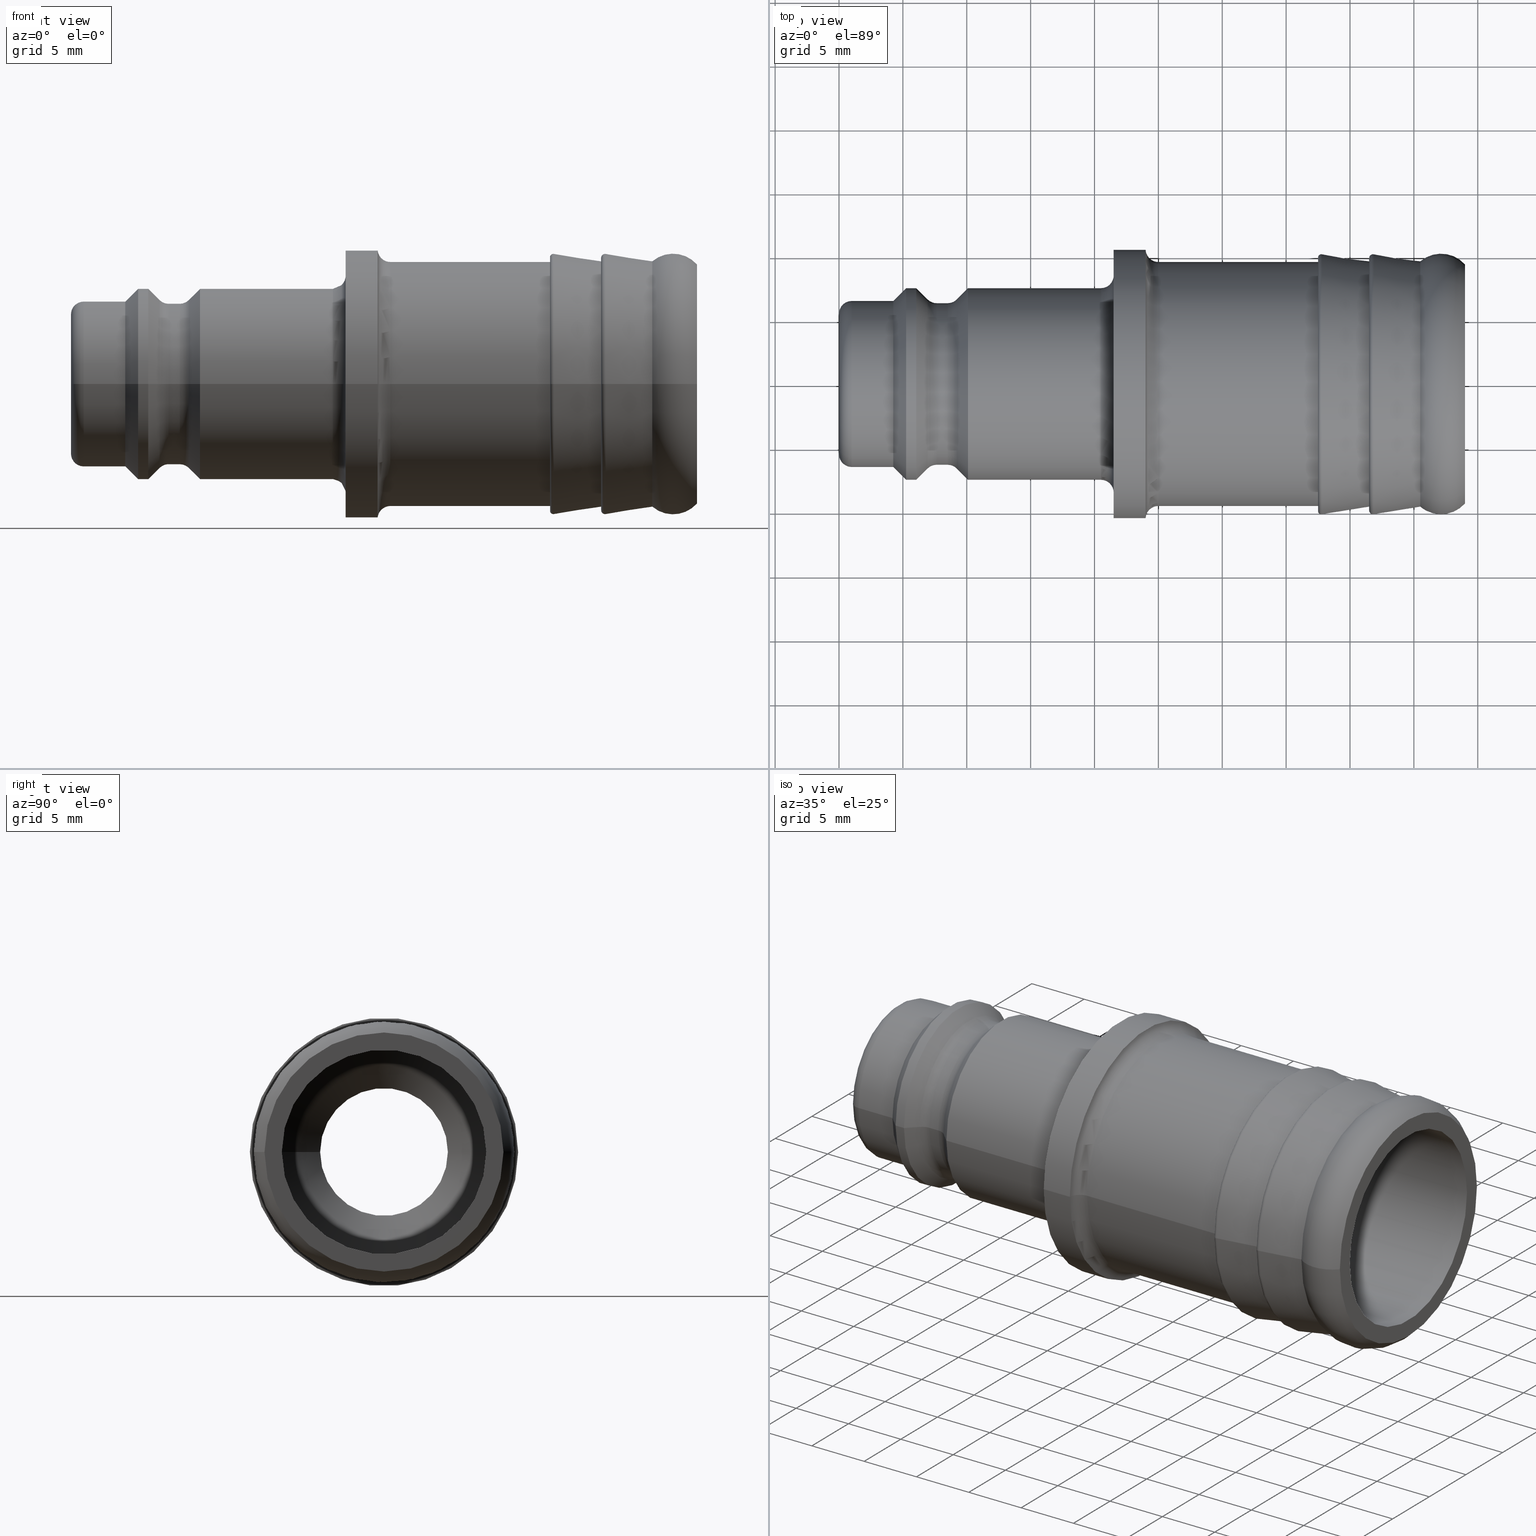
[diagram: canonical four-view strip — front | top / right | iso, engineering-drawing reading convention]
A machine part, canonical four-view strip (front | top / right | iso — engineering-drawing reading convention). The complete STEP part file that produces these views, byte-faithful:
ISO-10303-21;
HEADER;
/****************************************************************
 * Generated by software with PDElib inside                    *
 * PDElib Version v51a, created Wed 11/30/2011                  *
 * ITI Transcendata (http://www.transcendata.com/)              *
 ****************************************************************/
FILE_DESCRIPTION((''),'2;1');
FILE_NAME('J:\\3D Zeichnungen_step\\Serie 27\\27sftf19rxx.stp','2014-01-21T15:47:39',('IA176480'),(''),'Autodesk Inventor 2013','Autodesk Inventor 2013','');
FILE_SCHEMA(('AUTOMOTIVE_DESIGN { 1 0 10303 214 1 1 1 1 }'));
ENDSEC;
DATA;
#5=APPLICATION_CONTEXT('automotive design');
#6=APPLICATION_PROTOCOL_DEFINITION('International Standard','automotive_design',2001,#5);
#7=PRODUCT_CONTEXT('',#5,'mechanical');
#8=PRODUCT('D107898','D107898',$,(#7));
#9=PRODUCT_RELATED_PRODUCT_CATEGORY('part',$,(#8));
#10=PRODUCT_DEFINITION_FORMATION('',$,#8);
#11=PRODUCT_DEFINITION_CONTEXT('part definition',#5,'design');
#12=PRODUCT_DEFINITION('',$,#10,#11);
#18=(NAMED_UNIT(*)PLANE_ANGLE_UNIT()SI_UNIT($,.RADIAN.));
#19=DIMENSIONAL_EXPONENTS(0.0,0.0,0.0,0.0,0.0,0.0,0.0);
#20=PLANE_ANGLE_MEASURE_WITH_UNIT(PLANE_ANGLE_MEASURE(0.0174532925),#18);
#24=(CONVERSION_BASED_UNIT('DEGREE',#20)NAMED_UNIT(#19)PLANE_ANGLE_UNIT());
#28=(NAMED_UNIT(*)SI_UNIT($,.STERADIAN.)SOLID_ANGLE_UNIT());
#32=(LENGTH_UNIT()NAMED_UNIT(*)SI_UNIT(.MILLI.,.METRE.));
#34=UNCERTAINTY_MEASURE_WITH_UNIT(LENGTH_MEASURE(0.01),#32,'DISTANCE_ACCURACY_VALUE','');
#36=(GEOMETRIC_REPRESENTATION_CONTEXT(3)GLOBAL_UNCERTAINTY_ASSIGNED_CONTEXT((#34))GLOBAL_UNIT_ASSIGNED_CONTEXT((#24,#28,#32))REPRESENTATION_CONTEXT('None','None'));
#37=AXIS2_PLACEMENT_3D('',#38,#39,#40);
#38=CARTESIAN_POINT('',(0.0,0.0,0.0));
#39=DIRECTION('',(0.0,0.0,1.0));
#40=DIRECTION('',(1.0,0.0,0.0));
#41=SHAPE_REPRESENTATION('',(#37),#36);
#42=PRODUCT_DEFINITION_SHAPE('','',#12);
#43=SHAPE_DEFINITION_REPRESENTATION(#42,#41);
#49=(NAMED_UNIT(*)PLANE_ANGLE_UNIT()SI_UNIT($,.RADIAN.));
#50=DIMENSIONAL_EXPONENTS(0.0,0.0,0.0,0.0,0.0,0.0,0.0);
#51=PLANE_ANGLE_MEASURE_WITH_UNIT(PLANE_ANGLE_MEASURE(0.0174532925),#49);
#55=(CONVERSION_BASED_UNIT('DEGREE',#51)NAMED_UNIT(#50)PLANE_ANGLE_UNIT());
#59=(NAMED_UNIT(*)SI_UNIT($,.STERADIAN.)SOLID_ANGLE_UNIT());
#63=(LENGTH_UNIT()NAMED_UNIT(*)SI_UNIT(.MILLI.,.METRE.));
#65=UNCERTAINTY_MEASURE_WITH_UNIT(LENGTH_MEASURE(0.000001),#63,'DISTANCE_ACCURACY_VALUE','');
#67=(GEOMETRIC_REPRESENTATION_CONTEXT(3)GLOBAL_UNCERTAINTY_ASSIGNED_CONTEXT((#65))GLOBAL_UNIT_ASSIGNED_CONTEXT((#55,#59,#63))REPRESENTATION_CONTEXT('','3D'));
#68=CARTESIAN_POINT('',(24.99874921777192,0.0,0.0));
#69=DIRECTION('',(-1.0,0.0,0.0));
#70=DIRECTION('',(0.0,-1.0,0.0));
#71=AXIS2_PLACEMENT_3D('',#68,#69,#70);
#72=TOROIDAL_SURFACE('',#71,10.550000000000001,1.0);
#73=CARTESIAN_POINT('',(24.99874921777192,9.550000000000003,-1.108567E-017));
#74=VERTEX_POINT('',#73);
#75=CARTESIAN_POINT('',(24.99874921777192,0.0,0.0));
#76=DIRECTION('',(-1.0,0.0,0.0));
#77=DIRECTION('',(0.0,-1.0,0.0));
#78=AXIS2_PLACEMENT_3D('',#75,#76,#77);
#79=CIRCLE('',#78,9.550000000000003);
#80=EDGE_CURVE('',#74,#74,#79,.T.);
#81=ORIENTED_EDGE('',*,*,#80,.T.);
#82=EDGE_LOOP('',(#81));
#83=FACE_OUTER_BOUND('',#82,.T.);
#84=CARTESIAN_POINT('',(24.000000000000014,-10.5,0.0));
#85=VERTEX_POINT('',#84);
#86=CARTESIAN_POINT('',(24.000000000000014,0.0,0.0));
#87=DIRECTION('',(-1.0,0.0,0.0));
#88=DIRECTION('',(0.0,-1.0,0.0));
#89=AXIS2_PLACEMENT_3D('',#86,#87,#88);
#90=CIRCLE('',#89,10.5);
#91=EDGE_CURVE('',#85,#85,#90,.T.);
#92=ORIENTED_EDGE('',*,*,#91,.F.);
#93=EDGE_LOOP('',(#92));
#94=FACE_BOUND('',#93,.T.);
#95=ADVANCED_FACE('',(#83,#94),#72,.F.);
#96=CARTESIAN_POINT('',(30.75,0.0,0.0));
#97=DIRECTION('',(-1.0,0.0,0.0));
#98=DIRECTION('',(0.0,-1.0,0.0));
#99=AXIS2_PLACEMENT_3D('',#96,#97,#98);
#100=CYLINDRICAL_SURFACE('',#99,9.550000000000001);
#101=CARTESIAN_POINT('',(37.499999999999993,-9.549999999999997,0.0));
#102=VERTEX_POINT('',#101);
#103=CARTESIAN_POINT('',(37.499999999999993,0.0,0.0));
#104=DIRECTION('',(-1.0,0.0,0.0));
#105=DIRECTION('',(0.0,-1.0,0.0));
#106=AXIS2_PLACEMENT_3D('',#103,#104,#105);
#107=CIRCLE('',#106,9.549999999999997);
#108=EDGE_CURVE('',#102,#102,#107,.T.);
#109=ORIENTED_EDGE('',*,*,#108,.T.);
#110=EDGE_LOOP('',(#109));
#111=FACE_OUTER_BOUND('',#110,.T.);
#112=ORIENTED_EDGE('',*,*,#80,.F.);
#113=EDGE_LOOP('',(#112));
#114=FACE_BOUND('',#113,.T.);
#115=ADVANCED_FACE('',(#111,#114),#100,.T.);
#116=CARTESIAN_POINT('',(20.499999999999993,0.0,0.0));
#117=DIRECTION('',(-1.0,0.0,0.0));
#118=DIRECTION('',(0.0,0.0,1.0));
#119=AXIS2_PLACEMENT_3D('',#116,#117,#118);
#120=TOROIDAL_SURFACE('',#119,8.499999999999998,1.0);
#121=CARTESIAN_POINT('',(21.499999999999993,-8.499999999999998,0.0));
#122=VERTEX_POINT('',#121);
#123=CARTESIAN_POINT('',(21.499999999999993,0.0,0.0));
#124=DIRECTION('',(-1.0,0.0,0.0));
#125=DIRECTION('',(0.0,1.0,0.0));
#126=AXIS2_PLACEMENT_3D('',#123,#124,#125);
#127=CIRCLE('',#126,8.499999999999998);
#128=EDGE_CURVE('',#122,#122,#127,.T.);
#129=ORIENTED_EDGE('',*,*,#128,.T.);
#130=EDGE_LOOP('',(#129));
#131=FACE_OUTER_BOUND('',#130,.T.);
#132=CARTESIAN_POINT('',(20.499999999999993,-7.499999999999999,-1.836970E-015));
#133=VERTEX_POINT('',#132);
#134=CARTESIAN_POINT('',(20.499999999999993,0.0,0.0));
#135=DIRECTION('',(1.0,0.0,0.0));
#136=DIRECTION('',(0.0,1.0,0.0));
#137=AXIS2_PLACEMENT_3D('',#134,#135,#136);
#138=CIRCLE('',#137,7.499999999999999);
#139=EDGE_CURVE('',#133,#133,#138,.T.);
#140=ORIENTED_EDGE('',*,*,#139,.T.);
#141=EDGE_LOOP('',(#140));
#142=FACE_BOUND('',#141,.T.);
#143=ADVANCED_FACE('',(#131,#142),#120,.F.);
#144=CARTESIAN_POINT('',(21.499999999999993,-9.0,0.0));
#145=DIRECTION('',(-1.0,0.0,0.0));
#146=DIRECTION('',(0.0,0.0,1.0));
#147=AXIS2_PLACEMENT_3D('',#144,#145,#146);
#148=PLANE('',#147);
#149=CARTESIAN_POINT('',(21.5,-10.500000000000004,0.0));
#150=VERTEX_POINT('',#149);
#151=CARTESIAN_POINT('',(21.5,0.0,0.0));
#152=DIRECTION('',(-1.0,0.0,0.0));
#153=DIRECTION('',(0.0,-1.0,0.0));
#154=AXIS2_PLACEMENT_3D('',#151,#152,#153);
#155=CIRCLE('',#154,10.500000000000004);
#156=EDGE_CURVE('',#150,#150,#155,.T.);
#157=ORIENTED_EDGE('',*,*,#156,.T.);
#158=EDGE_LOOP('',(#157));
#159=FACE_OUTER_BOUND('',#158,.T.);
#160=ORIENTED_EDGE('',*,*,#128,.F.);
#161=EDGE_LOOP('',(#160));
#162=FACE_BOUND('',#161,.T.);
#163=ADVANCED_FACE('',(#159,#162),#148,.T.);
#164=CARTESIAN_POINT('',(15.799999999999994,0.0,0.0));
#165=DIRECTION('',(-1.0,0.0,0.0));
#166=DIRECTION('',(0.0,-1.0,0.0));
#167=AXIS2_PLACEMENT_3D('',#164,#165,#166);
#168=CYLINDRICAL_SURFACE('',#167,7.499999999999999);
#169=CARTESIAN_POINT('',(10.100000000000001,-7.500000000000001,0.0));
#170=VERTEX_POINT('',#169);
#171=CARTESIAN_POINT('',(10.100000000000001,0.0,0.0));
#172=DIRECTION('',(-1.0,0.0,0.0));
#173=DIRECTION('',(0.0,-1.0,0.0));
#174=AXIS2_PLACEMENT_3D('',#171,#172,#173);
#175=CIRCLE('',#174,7.500000000000001);
#176=EDGE_CURVE('',#170,#170,#175,.T.);
#177=ORIENTED_EDGE('',*,*,#176,.F.);
#178=EDGE_LOOP('',(#177));
#179=FACE_OUTER_BOUND('',#178,.T.);
#180=ORIENTED_EDGE('',*,*,#139,.F.);
#181=EDGE_LOOP('',(#180));
#182=FACE_BOUND('',#181,.T.);
#183=ADVANCED_FACE('',(#179,#182),#168,.T.);
#184=CARTESIAN_POINT('',(8.510786437626909,0.0,0.0));
#185=DIRECTION('',(-1.0,0.0,0.0));
#186=DIRECTION('',(0.0,0.0,1.0));
#187=AXIS2_PLACEMENT_3D('',#184,#185,#186);
#188=TOROIDAL_SURFACE('',#187,7.325000000000001,1.0);
#189=CARTESIAN_POINT('',(9.217893218813455,-6.617893218813454,1.232595E-031));
#190=VERTEX_POINT('',#189);
#191=CARTESIAN_POINT('',(9.217893218813455,0.0,-8.104582E-016));
#192=DIRECTION('',(-1.0,0.0,0.0));
#193=DIRECTION('',(0.0,1.0,0.0));
#194=AXIS2_PLACEMENT_3D('',#191,#192,#193);
#195=CIRCLE('',#194,6.617893218813454);
#196=EDGE_CURVE('',#190,#190,#195,.T.);
#197=ORIENTED_EDGE('',*,*,#196,.T.);
#198=EDGE_LOOP('',(#197));
#199=FACE_OUTER_BOUND('',#198,.T.);
#200=CARTESIAN_POINT('',(8.510786437626909,-6.325000000000002,-1.549178E-015));
#201=VERTEX_POINT('',#200);
#202=CARTESIAN_POINT('',(8.510786437626909,0.0,0.0));
#203=DIRECTION('',(1.0,0.0,0.0));
#204=DIRECTION('',(0.0,1.0,0.0));
#205=AXIS2_PLACEMENT_3D('',#202,#203,#204);
#206=CIRCLE('',#205,6.325000000000002);
#207=EDGE_CURVE('',#201,#201,#206,.T.);
#208=ORIENTED_EDGE('',*,*,#207,.T.);
#209=EDGE_LOOP('',(#208));
#210=FACE_BOUND('',#209,.T.);
#211=ADVANCED_FACE('',(#199,#210),#188,.F.);
#212=CARTESIAN_POINT('',(8.074999999999999,0.0,0.0));
#213=DIRECTION('',(-1.0,0.0,0.0));
#214=DIRECTION('',(0.0,-1.0,0.0));
#215=AXIS2_PLACEMENT_3D('',#212,#213,#214);
#216=CYLINDRICAL_SURFACE('',#215,6.325000000000002);
#217=CARTESIAN_POINT('',(7.639213562373093,-6.325000000000002,0.0));
#218=VERTEX_POINT('',#217);
#219=CARTESIAN_POINT('',(7.639213562373093,0.0,0.0));
#220=DIRECTION('',(-1.0,0.0,0.0));
#221=DIRECTION('',(0.0,1.0,0.0));
#222=AXIS2_PLACEMENT_3D('',#219,#220,#221);
#223=CIRCLE('',#222,6.325000000000002);
#224=EDGE_CURVE('',#218,#218,#223,.T.);
#225=ORIENTED_EDGE('',*,*,#224,.F.);
#226=EDGE_LOOP('',(#225));
#227=FACE_OUTER_BOUND('',#226,.T.);
#228=ORIENTED_EDGE('',*,*,#207,.F.);
#229=EDGE_LOOP('',(#228));
#230=FACE_BOUND('',#229,.T.);
#231=ADVANCED_FACE('',(#227,#230),#216,.T.);
#232=CARTESIAN_POINT('',(9.512500000000003,0.0,0.0));
#233=DIRECTION('',(1.0,0.0,0.0));
#234=DIRECTION('',(0.0,-1.0,0.0));
#235=AXIS2_PLACEMENT_3D('',#232,#233,#234);
#236=CONICAL_SURFACE('',#235,6.912500000000001,45.000000000000007);
#237=ORIENTED_EDGE('',*,*,#176,.T.);
#238=EDGE_LOOP('',(#237));
#239=FACE_OUTER_BOUND('',#238,.T.);
#240=ORIENTED_EDGE('',*,*,#196,.F.);
#241=EDGE_LOOP('',(#240));
#242=FACE_BOUND('',#241,.T.);
#243=ADVANCED_FACE('',(#239,#242),#236,.T.);
#244=CARTESIAN_POINT('',(7.639213562373093,0.0,0.0));
#245=DIRECTION('',(-1.0,0.0,0.0));
#246=DIRECTION('',(0.0,0.0,1.0));
#247=AXIS2_PLACEMENT_3D('',#244,#245,#246);
#248=TOROIDAL_SURFACE('',#247,7.325000000000001,1.0);
#249=ORIENTED_EDGE('',*,*,#224,.T.);
#250=EDGE_LOOP('',(#249));
#251=FACE_OUTER_BOUND('',#250,.T.);
#252=CARTESIAN_POINT('',(6.932106781186544,-6.617893218813454,-1.620916E-015));
#253=VERTEX_POINT('',#252);
#254=CARTESIAN_POINT('',(6.932106781186544,0.0,-8.104582E-016));
#255=DIRECTION('',(1.0,0.0,0.0));
#256=DIRECTION('',(0.0,1.0,0.0));
#257=AXIS2_PLACEMENT_3D('',#254,#255,#256);
#258=CIRCLE('',#257,6.617893218813454);
#259=EDGE_CURVE('',#253,#253,#258,.T.);
#260=ORIENTED_EDGE('',*,*,#259,.T.);
#261=EDGE_LOOP('',(#260));
#262=FACE_BOUND('',#261,.T.);
#263=ADVANCED_FACE('',(#251,#262),#248,.F.);
#264=CARTESIAN_POINT('',(6.637499999999998,0.0,0.0));
#265=DIRECTION('',(-1.0,0.0,0.0));
#266=DIRECTION('',(0.0,-1.0,0.0));
#267=AXIS2_PLACEMENT_3D('',#264,#265,#266);
#268=CONICAL_SURFACE('',#267,6.912500000000001,45.000000000000028);
#269=CARTESIAN_POINT('',(6.05,-7.5,0.0));
#270=VERTEX_POINT('',#269);
#271=CARTESIAN_POINT('',(6.05,0.0,0.0));
#272=DIRECTION('',(-1.0,0.0,0.0));
#273=DIRECTION('',(0.0,-1.0,0.0));
#274=AXIS2_PLACEMENT_3D('',#271,#272,#273);
#275=CIRCLE('',#274,7.5);
#276=EDGE_CURVE('',#270,#270,#275,.T.);
#277=ORIENTED_EDGE('',*,*,#276,.F.);
#278=EDGE_LOOP('',(#277));
#279=FACE_OUTER_BOUND('',#278,.T.);
#280=ORIENTED_EDGE('',*,*,#259,.F.);
#281=EDGE_LOOP('',(#280));
#282=FACE_BOUND('',#281,.T.);
#283=ADVANCED_FACE('',(#279,#282),#268,.T.);
#284=CARTESIAN_POINT('',(1.0,0.0,0.0));
#285=DIRECTION('',(-1.0,0.0,0.0));
#286=DIRECTION('',(0.0,0.0,1.0));
#287=AXIS2_PLACEMENT_3D('',#284,#285,#286);
#288=TOROIDAL_SURFACE('',#287,5.499999999999999,1.0);
#289=CARTESIAN_POINT('',(1.0,-6.499999999999999,0.0));
#290=VERTEX_POINT('',#289);
#291=CARTESIAN_POINT('',(1.0,0.0,0.0));
#292=DIRECTION('',(-1.0,0.0,0.0));
#293=DIRECTION('',(0.0,1.0,0.0));
#294=AXIS2_PLACEMENT_3D('',#291,#292,#293);
#295=CIRCLE('',#294,6.499999999999999);
#296=EDGE_CURVE('',#290,#290,#295,.T.);
#297=ORIENTED_EDGE('',*,*,#296,.T.);
#298=EDGE_LOOP('',(#297));
#299=FACE_OUTER_BOUND('',#298,.T.);
#300=CARTESIAN_POINT('',(1.387779E-016,-5.499999999999999,-1.347111E-015));
#301=VERTEX_POINT('',#300);
#302=CARTESIAN_POINT('',(1.387779E-016,0.0,0.0));
#303=DIRECTION('',(1.0,0.0,0.0));
#304=DIRECTION('',(0.0,1.0,0.0));
#305=AXIS2_PLACEMENT_3D('',#302,#303,#304);
#306=CIRCLE('',#305,5.499999999999999);
#307=EDGE_CURVE('',#301,#301,#306,.T.);
#308=ORIENTED_EDGE('',*,*,#307,.T.);
#309=EDGE_LOOP('',(#308));
#310=FACE_BOUND('',#309,.T.);
#311=ADVANCED_FACE('',(#299,#310),#288,.T.);
#312=CARTESIAN_POINT('',(1.990051E-016,-5.750000000000004,0.0));
#313=DIRECTION('',(-1.0,0.0,0.0));
#314=DIRECTION('',(0.0,0.0,1.0));
#315=AXIS2_PLACEMENT_3D('',#312,#313,#314);
#316=PLANE('',#315);
#317=ORIENTED_EDGE('',*,*,#307,.F.);
#318=EDGE_LOOP('',(#317));
#319=FACE_OUTER_BOUND('',#318,.T.);
#320=CARTESIAN_POINT('',(0.0,-5.000000000000009,0.0));
#321=VERTEX_POINT('',#320);
#322=CARTESIAN_POINT('',(0.0,0.0,0.0));
#323=DIRECTION('',(-1.0,0.0,0.0));
#324=DIRECTION('',(0.0,-1.0,0.0));
#325=AXIS2_PLACEMENT_3D('',#322,#323,#324);
#326=CIRCLE('',#325,5.000000000000009);
#327=EDGE_CURVE('',#321,#321,#326,.T.);
#328=ORIENTED_EDGE('',*,*,#327,.F.);
#329=EDGE_LOOP('',(#328));
#330=FACE_BOUND('',#329,.T.);
#331=ADVANCED_FACE('',(#319,#330),#316,.T.);
#332=CARTESIAN_POINT('',(2.125000000000001,0.0,0.0));
#333=DIRECTION('',(-1.0,0.0,0.0));
#334=DIRECTION('',(0.0,-1.0,0.0));
#335=AXIS2_PLACEMENT_3D('',#332,#333,#334);
#336=CYLINDRICAL_SURFACE('',#335,6.499999999999999);
#337=CARTESIAN_POINT('',(4.250000000000001,-6.499999999999999,0.0));
#338=VERTEX_POINT('',#337);
#339=CARTESIAN_POINT('',(4.250000000000001,0.0,0.0));
#340=DIRECTION('',(-1.0,0.0,0.0));
#341=DIRECTION('',(0.0,-1.0,0.0));
#342=AXIS2_PLACEMENT_3D('',#339,#340,#341);
#343=CIRCLE('',#342,6.499999999999999);
#344=EDGE_CURVE('',#338,#338,#343,.T.);
#345=ORIENTED_EDGE('',*,*,#344,.T.);
#346=EDGE_LOOP('',(#345));
#347=FACE_OUTER_BOUND('',#346,.T.);
#348=ORIENTED_EDGE('',*,*,#296,.F.);
#349=EDGE_LOOP('',(#348));
#350=FACE_BOUND('',#349,.T.);
#351=ADVANCED_FACE('',(#347,#350),#336,.T.);
#352=CARTESIAN_POINT('',(11.633974596215563,0.0,0.0));
#353=DIRECTION('',(-1.0,0.0,0.0));
#354=DIRECTION('',(0.0,-1.0,0.0));
#355=AXIS2_PLACEMENT_3D('',#352,#353,#354);
#356=CYLINDRICAL_SURFACE('',#355,5.000000000000004);
#357=CARTESIAN_POINT('',(23.267949192431125,-5.0,0.0));
#358=VERTEX_POINT('',#357);
#359=CARTESIAN_POINT('',(23.267949192431125,0.0,0.0));
#360=DIRECTION('',(-1.0,0.0,0.0));
#361=DIRECTION('',(0.0,-1.0,0.0));
#362=AXIS2_PLACEMENT_3D('',#359,#360,#361);
#363=CIRCLE('',#362,5.0);
#364=EDGE_CURVE('',#358,#358,#363,.T.);
#365=ORIENTED_EDGE('',*,*,#364,.F.);
#366=EDGE_LOOP('',(#365));
#367=FACE_OUTER_BOUND('',#366,.T.);
#368=ORIENTED_EDGE('',*,*,#327,.T.);
#369=EDGE_LOOP('',(#368));
#370=FACE_BOUND('',#369,.T.);
#371=ADVANCED_FACE('',(#367,#370),#356,.F.);
#372=CARTESIAN_POINT('',(24.133974596215563,0.0,0.0));
#373=DIRECTION('',(1.0,0.0,0.0));
#374=DIRECTION('',(0.0,-1.0,0.0));
#375=AXIS2_PLACEMENT_3D('',#372,#373,#374);
#376=CONICAL_SURFACE('',#375,6.500000000000002,60.000000000000036);
#377=CARTESIAN_POINT('',(25.0,-8.000000000000004,0.0));
#378=VERTEX_POINT('',#377);
#379=CARTESIAN_POINT('',(25.0,0.0,0.0));
#380=DIRECTION('',(-1.0,0.0,0.0));
#381=DIRECTION('',(0.0,-1.0,0.0));
#382=AXIS2_PLACEMENT_3D('',#379,#380,#381);
#383=CIRCLE('',#382,8.000000000000004);
#384=EDGE_CURVE('',#378,#378,#383,.T.);
#385=ORIENTED_EDGE('',*,*,#384,.F.);
#386=EDGE_LOOP('',(#385));
#387=FACE_OUTER_BOUND('',#386,.T.);
#388=ORIENTED_EDGE('',*,*,#364,.T.);
#389=EDGE_LOOP('',(#388));
#390=FACE_BOUND('',#389,.T.);
#391=ADVANCED_FACE('',(#387,#390),#376,.F.);
#392=CARTESIAN_POINT('',(37.000000000000007,0.0,0.0));
#393=DIRECTION('',(-1.0,0.0,0.0));
#394=DIRECTION('',(0.0,-1.0,0.0));
#395=AXIS2_PLACEMENT_3D('',#392,#393,#394);
#396=CYLINDRICAL_SURFACE('',#395,7.999999999999997);
#397=CARTESIAN_POINT('',(49.000000000000014,-7.999999999999991,0.0));
#398=VERTEX_POINT('',#397);
#399=CARTESIAN_POINT('',(49.000000000000014,0.0,0.0));
#400=DIRECTION('',(-1.0,0.0,0.0));
#401=DIRECTION('',(0.0,-1.0,0.0));
#402=AXIS2_PLACEMENT_3D('',#399,#400,#401);
#403=CIRCLE('',#402,7.999999999999991);
#404=EDGE_CURVE('',#398,#398,#403,.T.);
#405=ORIENTED_EDGE('',*,*,#404,.F.);
#406=EDGE_LOOP('',(#405));
#407=FACE_OUTER_BOUND('',#406,.T.);
#408=ORIENTED_EDGE('',*,*,#384,.T.);
#409=EDGE_LOOP('',(#408));
#410=FACE_BOUND('',#409,.T.);
#411=ADVANCED_FACE('',(#407,#410),#396,.F.);
#412=CARTESIAN_POINT('',(49.0,-8.676688237259118,0.0));
#413=DIRECTION('',(1.0,0.0,0.0));
#414=DIRECTION('',(0.0,0.0,-1.0));
#415=AXIS2_PLACEMENT_3D('',#412,#413,#414);
#416=PLANE('',#415);
#417=CARTESIAN_POINT('',(49.0,-9.353376474518244,0.0));
#418=VERTEX_POINT('',#417);
#419=CARTESIAN_POINT('',(49.0,0.0,0.0));
#420=DIRECTION('',(-1.0,0.0,0.0));
#421=DIRECTION('',(0.0,-1.0,0.0));
#422=AXIS2_PLACEMENT_3D('',#419,#420,#421);
#423=CIRCLE('',#422,9.353376474518244);
#424=EDGE_CURVE('',#418,#418,#423,.T.);
#425=ORIENTED_EDGE('',*,*,#424,.F.);
#426=EDGE_LOOP('',(#425));
#427=FACE_OUTER_BOUND('',#426,.T.);
#428=ORIENTED_EDGE('',*,*,#404,.T.);
#429=EDGE_LOOP('',(#428));
#430=FACE_BOUND('',#429,.T.);
#431=ADVANCED_FACE('',(#427,#430),#416,.T.);
#432=CARTESIAN_POINT('',(47.124807680927205,0.0,0.0));
#433=DIRECTION('',(-1.0,0.0,0.0));
#434=DIRECTION('',(0.0,0.0,1.0));
#435=AXIS2_PLACEMENT_3D('',#432,#433,#434);
#436=TOROIDAL_SURFACE('',#435,7.7,2.499999999999996);
#437=CARTESIAN_POINT('',(45.500000000000007,-9.6,0.0));
#438=VERTEX_POINT('',#437);
#439=CARTESIAN_POINT('',(45.500000000000007,0.0,0.0));
#440=DIRECTION('',(-1.0,0.0,0.0));
#441=DIRECTION('',(0.0,-1.0,0.0));
#442=AXIS2_PLACEMENT_3D('',#439,#440,#441);
#443=CIRCLE('',#442,9.6);
#444=EDGE_CURVE('',#438,#438,#443,.T.);
#445=ORIENTED_EDGE('',*,*,#444,.F.);
#446=EDGE_LOOP('',(#445));
#447=FACE_OUTER_BOUND('',#446,.T.);
#448=ORIENTED_EDGE('',*,*,#424,.T.);
#449=EDGE_LOOP('',(#448));
#450=FACE_BOUND('',#449,.T.);
#451=ADVANCED_FACE('',(#447,#450),#436,.T.);
#452=CARTESIAN_POINT('',(43.67416545718433,0.0,0.0));
#453=DIRECTION('',(-1.0,0.0,0.0));
#454=DIRECTION('',(0.0,-1.0,0.0));
#455=AXIS2_PLACEMENT_3D('',#452,#453,#454);
#456=CONICAL_SURFACE('',#455,9.898040638606675,9.270926853805261);
#457=CARTESIAN_POINT('',(41.848330914368653,-10.196081277213352,0.0));
#458=VERTEX_POINT('',#457);
#459=CARTESIAN_POINT('',(41.848330914368653,0.0,0.0));
#460=DIRECTION('',(-1.0,0.0,0.0));
#461=DIRECTION('',(0.0,-1.0,0.0));
#462=AXIS2_PLACEMENT_3D('',#459,#460,#461);
#463=CIRCLE('',#462,10.196081277213352);
#464=EDGE_CURVE('',#458,#458,#463,.T.);
#465=ORIENTED_EDGE('',*,*,#464,.F.);
#466=EDGE_LOOP('',(#465));
#467=FACE_OUTER_BOUND('',#466,.T.);
#468=ORIENTED_EDGE('',*,*,#444,.T.);
#469=EDGE_LOOP('',(#468));
#470=FACE_BOUND('',#469,.T.);
#471=ADVANCED_FACE('',(#467,#470),#456,.T.);
#472=CARTESIAN_POINT('',(41.800000000000004,0.0,0.0));
#473=DIRECTION('',(-1.0,0.0,0.0));
#474=DIRECTION('',(0.0,0.0,1.0));
#475=AXIS2_PLACEMENT_3D('',#472,#473,#474);
#476=TOROIDAL_SURFACE('',#475,9.9,0.3);
#477=CARTESIAN_POINT('',(41.5,-9.9,0.0));
#478=VERTEX_POINT('',#477);
#479=CARTESIAN_POINT('',(41.5,0.0,0.0));
#480=DIRECTION('',(-1.0,0.0,0.0));
#481=DIRECTION('',(0.0,-1.0,0.0));
#482=AXIS2_PLACEMENT_3D('',#479,#480,#481);
#483=CIRCLE('',#482,9.9);
#484=EDGE_CURVE('',#478,#478,#483,.T.);
#485=ORIENTED_EDGE('',*,*,#484,.F.);
#486=EDGE_LOOP('',(#485));
#487=FACE_OUTER_BOUND('',#486,.T.);
#488=ORIENTED_EDGE('',*,*,#464,.T.);
#489=EDGE_LOOP('',(#488));
#490=FACE_BOUND('',#489,.T.);
#491=ADVANCED_FACE('',(#487,#490),#476,.T.);
#492=CARTESIAN_POINT('',(41.5,-9.75,0.0));
#493=DIRECTION('',(-1.0,0.0,0.0));
#494=DIRECTION('',(0.0,0.0,1.0));
#495=AXIS2_PLACEMENT_3D('',#492,#493,#494);
#496=PLANE('',#495);
#497=ORIENTED_EDGE('',*,*,#484,.T.);
#498=EDGE_LOOP('',(#497));
#499=FACE_OUTER_BOUND('',#498,.T.);
#500=CARTESIAN_POINT('',(41.5,-9.6,0.0));
#501=VERTEX_POINT('',#500);
#502=CARTESIAN_POINT('',(41.5,0.0,0.0));
#503=DIRECTION('',(-1.0,0.0,0.0));
#504=DIRECTION('',(0.0,-1.0,0.0));
#505=AXIS2_PLACEMENT_3D('',#502,#503,#504);
#506=CIRCLE('',#505,9.6);
#507=EDGE_CURVE('',#501,#501,#506,.T.);
#508=ORIENTED_EDGE('',*,*,#507,.F.);
#509=EDGE_LOOP('',(#508));
#510=FACE_BOUND('',#509,.T.);
#511=ADVANCED_FACE('',(#499,#510),#496,.T.);
#512=CARTESIAN_POINT('',(39.644851930028977,0.0,0.0));
#513=DIRECTION('',(-1.0,0.0,0.0));
#514=DIRECTION('',(0.0,-1.0,0.0));
#515=AXIS2_PLACEMENT_3D('',#512,#513,#514);
#516=CONICAL_SURFACE('',#515,9.898413536024719,9.138146831770071);
#517=CARTESIAN_POINT('',(37.789703860057948,-10.196827072049439,0.0));
#518=VERTEX_POINT('',#517);
#519=CARTESIAN_POINT('',(37.789703860057948,0.0,0.0));
#520=DIRECTION('',(-1.0,0.0,0.0));
#521=DIRECTION('',(0.0,-1.0,0.0));
#522=AXIS2_PLACEMENT_3D('',#519,#520,#521);
#523=CIRCLE('',#522,10.196827072049439);
#524=EDGE_CURVE('',#518,#518,#523,.T.);
#525=ORIENTED_EDGE('',*,*,#524,.F.);
#526=EDGE_LOOP('',(#525));
#527=FACE_OUTER_BOUND('',#526,.T.);
#528=ORIENTED_EDGE('',*,*,#507,.T.);
#529=EDGE_LOOP('',(#528));
#530=FACE_BOUND('',#529,.T.);
#531=ADVANCED_FACE('',(#527,#530),#516,.T.);
#532=CARTESIAN_POINT('',(37.75,0.0,0.0));
#533=DIRECTION('',(-1.0,0.0,0.0));
#534=DIRECTION('',(0.0,0.0,1.0));
#535=AXIS2_PLACEMENT_3D('',#532,#533,#534);
#536=TOROIDAL_SURFACE('',#535,9.949999999999999,0.249999999999999);
#537=CARTESIAN_POINT('',(37.499999999999993,-9.949999999999999,0.0));
#538=VERTEX_POINT('',#537);
#539=CARTESIAN_POINT('',(37.499999999999993,0.0,0.0));
#540=DIRECTION('',(-1.0,0.0,0.0));
#541=DIRECTION('',(0.0,-1.0,0.0));
#542=AXIS2_PLACEMENT_3D('',#539,#540,#541);
#543=CIRCLE('',#542,9.949999999999999);
#544=EDGE_CURVE('',#538,#538,#543,.T.);
#545=ORIENTED_EDGE('',*,*,#544,.F.);
#546=EDGE_LOOP('',(#545));
#547=FACE_OUTER_BOUND('',#546,.T.);
#548=ORIENTED_EDGE('',*,*,#524,.T.);
#549=EDGE_LOOP('',(#548));
#550=FACE_BOUND('',#549,.T.);
#551=ADVANCED_FACE('',(#547,#550),#536,.T.);
#552=CARTESIAN_POINT('',(37.499999999999993,-9.749999999999998,0.0));
#553=DIRECTION('',(-1.0,0.0,0.0));
#554=DIRECTION('',(0.0,0.0,1.0));
#555=AXIS2_PLACEMENT_3D('',#552,#553,#554);
#556=PLANE('',#555);
#557=ORIENTED_EDGE('',*,*,#544,.T.);
#558=EDGE_LOOP('',(#557));
#559=FACE_OUTER_BOUND('',#558,.T.);
#560=ORIENTED_EDGE('',*,*,#108,.F.);
#561=EDGE_LOOP('',(#560));
#562=FACE_BOUND('',#561,.T.);
#563=ADVANCED_FACE('',(#559,#562),#556,.T.);
#564=CARTESIAN_POINT('',(22.750000000000004,0.0,0.0));
#565=DIRECTION('',(-1.0,0.0,0.0));
#566=DIRECTION('',(0.0,-1.0,0.0));
#567=AXIS2_PLACEMENT_3D('',#564,#565,#566);
#568=CYLINDRICAL_SURFACE('',#567,10.500000000000004);
#569=ORIENTED_EDGE('',*,*,#156,.F.);
#570=EDGE_LOOP('',(#569));
#571=FACE_OUTER_BOUND('',#570,.T.);
#572=ORIENTED_EDGE('',*,*,#91,.T.);
#573=EDGE_LOOP('',(#572));
#574=FACE_BOUND('',#573,.T.);
#575=ADVANCED_FACE('',(#571,#574),#568,.T.);
#576=CARTESIAN_POINT('',(5.650000000000002,0.0,0.0));
#577=DIRECTION('',(-1.0,0.0,0.0));
#578=DIRECTION('',(0.0,-1.0,0.0));
#579=AXIS2_PLACEMENT_3D('',#576,#577,#578);
#580=CYLINDRICAL_SURFACE('',#579,7.5);
#581=CARTESIAN_POINT('',(5.250000000000003,-7.5,0.0));
#582=VERTEX_POINT('',#581);
#583=CARTESIAN_POINT('',(5.250000000000003,0.0,0.0));
#584=DIRECTION('',(-1.0,0.0,0.0));
#585=DIRECTION('',(0.0,-1.0,0.0));
#586=AXIS2_PLACEMENT_3D('',#583,#584,#585);
#587=CIRCLE('',#586,7.5);
#588=EDGE_CURVE('',#582,#582,#587,.T.);
#589=ORIENTED_EDGE('',*,*,#588,.F.);
#590=EDGE_LOOP('',(#589));
#591=FACE_OUTER_BOUND('',#590,.T.);
#592=ORIENTED_EDGE('',*,*,#276,.T.);
#593=EDGE_LOOP('',(#592));
#594=FACE_BOUND('',#593,.T.);
#595=ADVANCED_FACE('',(#591,#594),#580,.T.);
#596=CARTESIAN_POINT('',(4.750000000000002,0.0,0.0));
#597=DIRECTION('',(1.0,0.0,0.0));
#598=DIRECTION('',(0.0,-1.0,0.0));
#599=AXIS2_PLACEMENT_3D('',#596,#597,#598);
#600=CONICAL_SURFACE('',#599,7.0,44.999999999999986);
#601=ORIENTED_EDGE('',*,*,#344,.F.);
#602=EDGE_LOOP('',(#601));
#603=FACE_OUTER_BOUND('',#602,.T.);
#604=ORIENTED_EDGE('',*,*,#588,.T.);
#605=EDGE_LOOP('',(#604));
#606=FACE_BOUND('',#605,.T.);
#607=ADVANCED_FACE('',(#603,#606),#600,.T.);
#608=CLOSED_SHELL('',(#95,#115,#143,#163,#183,#211,#231,#243,#263,#283,#311,#331,#351,#371,#391,#411,#431,#451,#471,#491,#511,#531,#551,#563,#575,#595,#607));
#609=MANIFOLD_SOLID_BREP('Solid1',#608);
#610=COLOUR_RGB('Metal-Steel',0.639216005802155,0.639216005802155,0.662745475769043);
#611=FILL_AREA_STYLE_COLOUR('Metal-Steel',#610);
#612=FILL_AREA_STYLE('Metal-Steel',(#611));
#613=SURFACE_STYLE_FILL_AREA(#612);
#614=SURFACE_SIDE_STYLE('Metal-Steel',(#613));
#615=SURFACE_STYLE_USAGE(.BOTH.,#614);
#616=PRESENTATION_STYLE_ASSIGNMENT((#615));
#617=STYLED_ITEM('',(#616),#609);
#618=MECHANICAL_DESIGN_GEOMETRIC_PRESENTATION_REPRESENTATION('',(#617),#36);
#619=ADVANCED_BREP_SHAPE_REPRESENTATION('ABSR',(#609),#36);
#620=SHAPE_REPRESENTATION_RELATIONSHIP('SRR','None',#619,#41);
ENDSEC;
END-ISO-10303-21;
